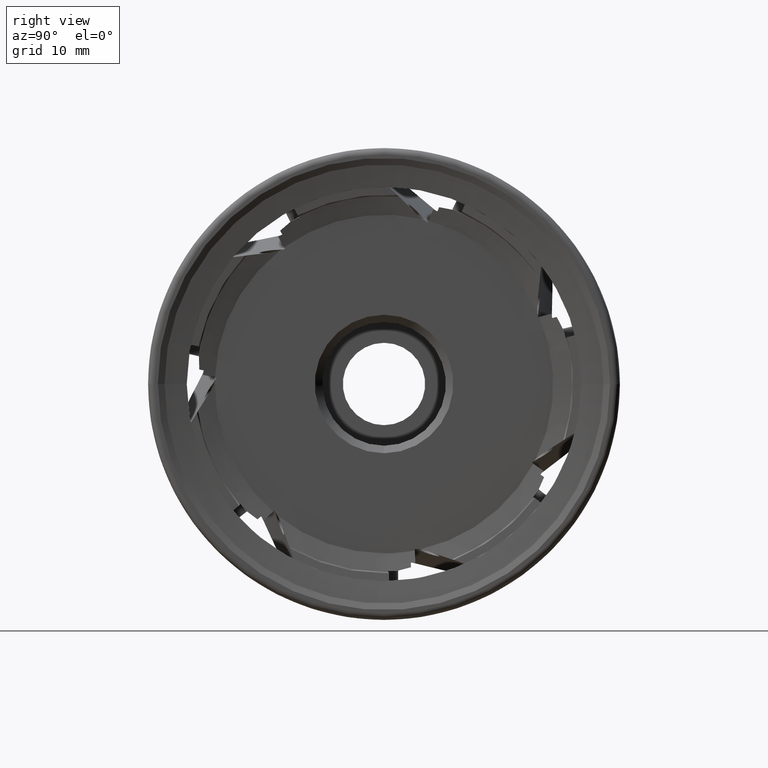
[diagram: clean part render]
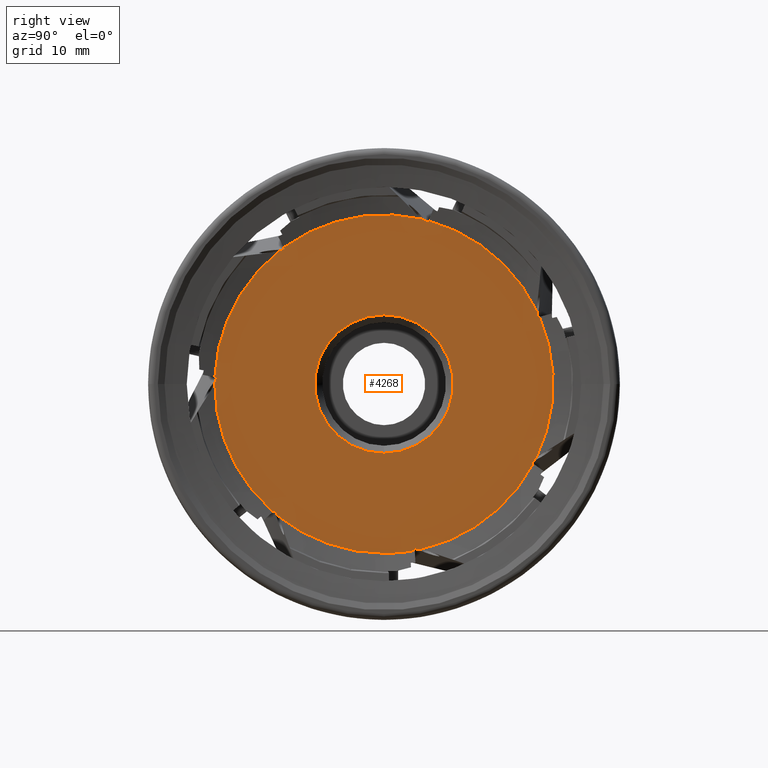
[diagram: same view with one face highlighted and labeled with its STEP entity id]
A machine part, right view. The second image highlights one B-rep face of the part: STEP entity #4268.
In plain terms, the highlighted planar face has unit normal (-1, 0, 0).
Its self-contained STEP definition (entity closure, byte-faithful):
#32 = CARTESIAN_POINT ( 'NONE',  ( -1.399999999999998800, 22.60000000000000100, 0.0000000000000000000 ) ) ;
#56 = PLANE ( 'NONE',  #8028 ) ;
#58 = DIRECTION ( 'NONE',  ( 0.0000000000000000000, 0.0000000000000000000, 1.000000000000000000 ) ) ;
#71 = DIRECTION ( 'NONE',  ( -1.000000000000000000, 0.0000000000000000000, 0.0000000000000000000 ) ) ;
#144 = CARTESIAN_POINT ( 'NONE',  ( -1.399999999999999700, 20.41604027686695500, 9.692538336955200500 ) ) ;
#155 = CARTESIAN_POINT ( 'NONE',  ( -1.399999999999999700, 20.30712452382361000, -9.918704228573505000 ) ) ;
#158 = CARTESIAN_POINT ( 'NONE',  ( -1.399999999999999700, 5.151261290103727600, 22.00510184300629000 ) ) ;
#172 = CARTESIAN_POINT ( 'NONE',  ( -1.400000000000003200, 4.906529814492049700, -22.06096020529252000 ) ) ;
#196 = VERTEX_POINT ( 'NONE', #144 ) ;
#513 = CARTESIAN_POINT ( 'NONE',  ( -1.399999999999998400, 0.0000000000000000000, 0.0000000000000000000 ) ) ;
#514 = DIRECTION ( 'NONE',  ( 1.000000000000000000, -0.0000000000000000000, -0.0000000000000000000 ) ) ;
#515 = DIRECTION ( 'NONE',  ( 0.0000000000000000000, 0.0000000000000000000, -1.000000000000000000 ) ) ;
#591 = CARTESIAN_POINT ( 'NONE',  ( -1.399999999999999700, -14.18878192012048300, -17.59086318584912700 ) ) ;
#646 = CARTESIAN_POINT ( 'NONE',  ( -1.399999999999999700, -13.99252251468825400, 17.74737483899922100 ) ) ;
#779 = CARTESIAN_POINT ( 'NONE',  ( -1.400000000000000600, 4.110753458719973900, -22.22299948255459500 ) ) ;
#815 = CARTESIAN_POINT ( 'NONE',  ( -1.399999999999998400, 0.0000000000000000000, -9.250000000000005300 ) ) ;
#883 = CARTESIAN_POINT ( 'NONE',  ( -1.399999999999998400, 1.132798289211302300E-015, 9.250000000000005300 ) ) ;
#891 = CARTESIAN_POINT ( 'NONE',  ( -1.399999999999999700, 0.0000000000000000000, -22.60000000000000100 ) ) ;
#933 = CARTESIAN_POINT ( 'NONE',  ( -1.399999999999998600, -22.36314276689863000, 0.8877722600349300400 ) ) ;
#936 = CARTESIAN_POINT ( 'NONE',  ( -1.399999999999999700, -22.58055118684321600, 0.9373943131647547400 ) ) ;
#940 = CARTESIAN_POINT ( 'NONE',  ( -1.399999999999998600, -13.24910315051505600, 18.03772601259343800 ) ) ;
#950 = CARTESIAN_POINT ( 'NONE',  ( -1.399999999999999700, -14.81162777086452700, -17.06973001477629700 ) ) ;
#951 = CARTESIAN_POINT ( 'NONE',  ( -1.399999999999998800, -14.63727975482926500, -16.93069211158372400 ) ) ;
#960 = CARTESIAN_POINT ( 'NONE',  ( -1.399999999999999700, -22.59965147047741900, 0.1255126007541865800 ) ) ;
#984 = CARTESIAN_POINT ( 'NONE',  ( -1.399999999999999700, 20.75109378904626600, 8.952770887172615500 ) ) ;
#987 = CARTESIAN_POINT ( 'NONE',  ( -1.399999999999998600, 20.53368536910167900, 8.903148834042792000 ) ) ;
#1013 = CARTESIAN_POINT ( 'NONE',  ( -1.399999999999999700, 5.938537219969624900, 21.80581976645307300 ) ) ;
#1018 = CARTESIAN_POINT ( 'NONE',  ( -1.399999999999999700, 19.93765348979920300, -10.64189707339333100 ) ) ;
#1032 = CARTESIAN_POINT ( 'NONE',  ( -1.399999999999998600, 5.841781370657558100, 21.60490417511303100 ) ) ;
#1038 = CARTESIAN_POINT ( 'NONE',  ( -1.399999999999999700, -13.34585899982712900, 18.23864160393348400 ) ) ;
#1040 = CARTESIAN_POINT ( 'NONE',  ( -1.399999999999998600, 19.76330547376394600, -10.50285917020076100 ) ) ;
#1111 = CARTESIAN_POINT ( 'NONE',  ( -1.399999999999999700, 0.0000000000000000000, 0.0000000000000000000 ) ) ;
#1112 = DIRECTION ( 'NONE',  ( 1.000000000000000000, -0.0000000000000000000, -0.0000000000000000000 ) ) ;
#1113 = DIRECTION ( 'NONE',  ( 0.0000000000000000000, 0.0000000000000000000, -1.000000000000000000 ) ) ;
#1136 = CARTESIAN_POINT ( 'NONE',  ( -1.399999999999999700, 0.0000000000000000000, 0.0000000000000000000 ) ) ;
#1137 = DIRECTION ( 'NONE',  ( 1.000000000000000000, -0.0000000000000000000, -0.0000000000000000000 ) ) ;
#1138 = DIRECTION ( 'NONE',  ( 0.0000000000000000000, 0.0000000000000000000, -1.000000000000000000 ) ) ;
#1160 = CARTESIAN_POINT ( 'NONE',  ( -1.399999999999999700, 0.0000000000000000000, 0.0000000000000000000 ) ) ;
#1161 = DIRECTION ( 'NONE',  ( 1.000000000000000000, -0.0000000000000000000, -0.0000000000000000000 ) ) ;
#1162 = DIRECTION ( 'NONE',  ( 0.0000000000000000000, 0.0000000000000000000, -1.000000000000000000 ) ) ;
#1184 = CARTESIAN_POINT ( 'NONE',  ( -1.399999999999999700, 0.0000000000000000000, 0.0000000000000000000 ) ) ;
#1185 = DIRECTION ( 'NONE',  ( 1.000000000000000000, -0.0000000000000000000, -0.0000000000000000000 ) ) ;
#1186 = DIRECTION ( 'NONE',  ( 0.0000000000000000000, 0.0000000000000000000, -1.000000000000000000 ) ) ;
#1208 = CARTESIAN_POINT ( 'NONE',  ( -1.399999999999999700, 0.0000000000000000000, 0.0000000000000000000 ) ) ;
#1209 = DIRECTION ( 'NONE',  ( 1.000000000000000000, -0.0000000000000000000, -0.0000000000000000000 ) ) ;
#1210 = DIRECTION ( 'NONE',  ( 0.0000000000000000000, 0.0000000000000000000, -1.000000000000000000 ) ) ;
#1232 = CARTESIAN_POINT ( 'NONE',  ( -1.399999999999999700, 0.0000000000000000000, 0.0000000000000000000 ) ) ;
#1233 = DIRECTION ( 'NONE',  ( 1.000000000000000000, -0.0000000000000000000, -0.0000000000000000000 ) ) ;
#1234 = DIRECTION ( 'NONE',  ( 0.0000000000000000000, 0.0000000000000000000, -1.000000000000000000 ) ) ;
#1396 = CARTESIAN_POINT ( 'NONE',  ( -1.399999999999999700, 0.0000000000000000000, 0.0000000000000000000 ) ) ;
#1397 = DIRECTION ( 'NONE',  ( 1.000000000000000000, -0.0000000000000000000, -0.0000000000000000000 ) ) ;
#1398 = DIRECTION ( 'NONE',  ( 0.0000000000000000000, 0.0000000000000000000, -1.000000000000000000 ) ) ;
#1719 = CARTESIAN_POINT ( 'NONE',  ( -1.399999999999998600, 20.53368536910167900, 8.903148834042792000 ) ) ;
#1723 = CARTESIAN_POINT ( 'NONE',  ( -1.399999999999998600, 19.76330547376394600, -10.50285917020076100 ) ) ;
#1724 = CARTESIAN_POINT ( 'NONE',  ( -1.399999999999998600, 19.92953633502286300, -10.29441226328657400 ) ) ;
#1725 = CARTESIAN_POINT ( 'NONE',  ( -1.399999999999998400, 0.0000000000000000000, 0.0000000000000000000 ) ) ;
#1726 = DIRECTION ( 'NONE',  ( 1.000000000000000000, -0.0000000000000000000, -0.0000000000000000000 ) ) ;
#1727 = DIRECTION ( 'NONE',  ( 0.0000000000000000000, 0.0000000000000000000, -1.000000000000000000 ) ) ;
#1728 = CARTESIAN_POINT ( 'NONE',  ( -1.399999999999998600, 20.47435826160222300, 9.163077875422757800 ) ) ;
#1729 = CARTESIAN_POINT ( 'NONE',  ( -1.399999999999998600, 20.11117901510847600, -10.09929686751148600 ) ) ;
#1730 = CARTESIAN_POINT ( 'NONE',  ( -1.399999999999999700, 20.30712452382361000, -9.918704228573505000 ) ) ;
#1731 = CARTESIAN_POINT ( 'NONE',  ( -1.399999999999998400, 5.601570816399265200, 21.72058348121350900 ) ) ;
#1732 = CARTESIAN_POINT ( 'NONE',  ( -1.399999999999998600, 5.841781370657558100, 21.60490417511303100 ) ) ;
#1733 = CARTESIAN_POINT ( 'NONE',  ( -1.399999999999998600, 20.43506326108671800, 9.426744300724928700 ) ) ;
#1734 = CARTESIAN_POINT ( 'NONE',  ( -1.399999999999999700, 20.41604027686695500, 9.692538336955200500 ) ) ;
#1735 = CARTESIAN_POINT ( 'NONE',  ( -1.399999999999998600, -13.48931370477334100, 17.92204670649296700 ) ) ;
#1736 = CARTESIAN_POINT ( 'NONE',  ( -1.399999999999998600, -13.24910315051505600, 18.03772601259343800 ) ) ;
#1737 = CARTESIAN_POINT ( 'NONE',  ( -1.399999999999998400, 5.370928072142761200, 21.85425473997535300 ) ) ;
#1738 = CARTESIAN_POINT ( 'NONE',  ( -1.399999999999999700, 5.151261290103727600, 22.00510184300629000 ) ) ;
#1739 = CARTESIAN_POINT ( 'NONE',  ( -1.399999999999998600, -22.42246987439810400, 0.6278432186549488500 ) ) ;
#1740 = CARTESIAN_POINT ( 'NONE',  ( -1.399999999999998600, -22.36314276689863000, 0.8877722600349300400 ) ) ;
#1741 = CARTESIAN_POINT ( 'NONE',  ( -1.399999999999998600, -13.73762550209110800, 17.82506561447004100 ) ) ;
#1742 = CARTESIAN_POINT ( 'NONE',  ( -1.399999999999999700, -13.99252251468825400, 17.74737483899922100 ) ) ;
#1743 = CARTESIAN_POINT ( 'NONE',  ( -1.399999999999998800, -14.47104889357036900, -17.13913901849789300 ) ) ;
#1744 = CARTESIAN_POINT ( 'NONE',  ( -1.399999999999998800, -14.63727975482926500, -16.93069211158372400 ) ) ;
#1745 = CARTESIAN_POINT ( 'NONE',  ( -1.399999999999998600, -22.50146687675929200, 0.3732385161942614000 ) ) ;
#1746 = CARTESIAN_POINT ( 'NONE',  ( -1.399999999999999700, -22.59965147047741900, 0.1255126007541865800 ) ) ;
#1747 = CARTESIAN_POINT ( 'NONE',  ( -1.399999999999998600, 4.377367059717665900, -21.99999999999999600 ) ) ;
#1748 = CARTESIAN_POINT ( 'NONE',  ( -1.399999999999998600, 4.110753458719973000, -22.00000000000000000 ) ) ;
#1749 = CARTESIAN_POINT ( 'NONE',  ( -1.399999999999998800, -14.32124474695182500, -17.35964479745397100 ) ) ;
#1750 = CARTESIAN_POINT ( 'NONE',  ( -1.399999999999999700, -14.18878192012048300, -17.59086318584912700 ) ) ;
#1753 = CARTESIAN_POINT ( 'NONE',  ( -1.399999999999998600, 4.643166777464476700, -22.02036150639939300 ) ) ;
#1754 = CARTESIAN_POINT ( 'NONE',  ( -1.400000000000003200, 4.906529814492049700, -22.06096020529252000 ) ) ;
#1960 = CIRCLE ( 'NONE', #10606, 22.60000000000000100 ) ;
#2103 = LINE ( 'NONE', #3218, #2106 ) ;
#2106 = VECTOR ( 'NONE', #3219, 1000.000000000000000 ) ;
#2116 = LINE ( 'NONE', #3328, #2119 ) ;
#2119 = VECTOR ( 'NONE', #3329, 1000.000000000000000 ) ;
#2129 = LINE ( 'NONE', #3365, #2132 ) ;
#2132 = VECTOR ( 'NONE', #3366, 1000.000000000000100 ) ;
#2276 = LINE ( 'NONE', #3666, #2279 ) ;
#2279 = VECTOR ( 'NONE', #3667, 1000.000000000000100 ) ;
#2289 = LINE ( 'NONE', #3693, #2292 ) ;
#2292 = VECTOR ( 'NONE', #3694, 1000.000000000000100 ) ;
#2302 = LINE ( 'NONE', #3724, #3887 ) ;
#2546 = CARTESIAN_POINT ( 'NONE',  ( -1.399999999999999700, 0.0000000000000000000, 0.0000000000000000000 ) ) ;
#2547 = DIRECTION ( 'NONE',  ( 1.000000000000000000, -0.0000000000000000000, -0.0000000000000000000 ) ) ;
#2548 = DIRECTION ( 'NONE',  ( 0.0000000000000000000, 0.0000000000000000000, -1.000000000000000000 ) ) ;
#3218 = CARTESIAN_POINT ( 'NONE',  ( -1.399999999999998800, 16.37749941317354200, -7.802768936963082600 ) ) ;
#3219 = DIRECTION ( 'NONE',  ( 0.0000000000000000000, -0.7818314824680221400, 0.6234898018587431400 ) ) ;
#3234 =( BOUNDED_CURVE ( )  B_SPLINE_CURVE ( 3, ( #1732, #1731, #1737, #1738 ),
 .UNSPECIFIED., .F., .F. ) 
 B_SPLINE_CURVE_WITH_KNOTS ( ( 4, 4 ),
 ( 4.712388980384688800, 4.868702103524778800 ),
 .UNSPECIFIED. ) 
 CURVE ( )  GEOMETRIC_REPRESENTATION_ITEM ( )  RATIONAL_B_SPLINE_CURVE ( ( 1.000000000000000000, 0.9979648868928966400, 0.9979648868928966400, 1.000000000000000000 ) ) 
 REPRESENTATION_ITEM ( '' )  );
#3243 =( BOUNDED_CURVE ( )  B_SPLINE_CURVE ( 3, ( #1748, #1747, #1753, #1754 ),
 .UNSPECIFIED., .F., .F. ) 
 B_SPLINE_CURVE_WITH_KNOTS ( ( 4, 4 ),
 ( 4.712388980384687900, 4.868702103524768200 ),
 .UNSPECIFIED. ) 
 CURVE ( )  GEOMETRIC_REPRESENTATION_ITEM ( )  RATIONAL_B_SPLINE_CURVE ( ( 1.000000000000000000, 0.9979648868928969700, 0.9979648868928969700, 1.000000000000000000 ) ) 
 REPRESENTATION_ITEM ( '' )  );
#3244 =( BOUNDED_CURVE ( )  B_SPLINE_CURVE ( 3, ( #1740, #1739, #1745, #1746 ),
 .UNSPECIFIED., .F., .F. ) 
 B_SPLINE_CURVE_WITH_KNOTS ( ( 4, 4 ),
 ( 4.712388980384687900, 4.868702103524782400 ),
 .UNSPECIFIED. ) 
 CURVE ( )  GEOMETRIC_REPRESENTATION_ITEM ( )  RATIONAL_B_SPLINE_CURVE ( ( 1.000000000000000000, 0.9979648868928965300, 0.9979648868928965300, 1.000000000000000000 ) ) 
 REPRESENTATION_ITEM ( '' )  );
#3255 =( BOUNDED_CURVE ( )  B_SPLINE_CURVE ( 3, ( #1723, #1724, #1729, #1730 ),
 .UNSPECIFIED., .F., .F. ) 
 B_SPLINE_CURVE_WITH_KNOTS ( ( 4, 4 ),
 ( 4.712388980384687900, 4.868702103524785900 ),
 .UNSPECIFIED. ) 
 CURVE ( )  GEOMETRIC_REPRESENTATION_ITEM ( )  RATIONAL_B_SPLINE_CURVE ( ( 1.000000000000000000, 0.9979648868928965300, 0.9979648868928965300, 1.000000000000000000 ) ) 
 REPRESENTATION_ITEM ( '' )  );
#3261 =( BOUNDED_CURVE ( )  B_SPLINE_CURVE ( 3, ( #1744, #1743, #1749, #1750 ),
 .UNSPECIFIED., .F., .F. ) 
 B_SPLINE_CURVE_WITH_KNOTS ( ( 4, 4 ),
 ( 4.712388980384686100, 4.868702103524767300 ),
 .UNSPECIFIED. ) 
 CURVE ( )  GEOMETRIC_REPRESENTATION_ITEM ( )  RATIONAL_B_SPLINE_CURVE ( ( 1.000000000000000000, 0.9979648868928967500, 0.9979648868928967500, 1.000000000000000000 ) ) 
 REPRESENTATION_ITEM ( '' )  );
#3262 =( BOUNDED_CURVE ( )  B_SPLINE_CURVE ( 3, ( #1736, #1735, #1741, #1742 ),
 .UNSPECIFIED., .F., .F. ) 
 B_SPLINE_CURVE_WITH_KNOTS ( ( 4, 4 ),
 ( 4.712388980384688800, 4.868702103524771700 ),
 .UNSPECIFIED. ) 
 CURVE ( )  GEOMETRIC_REPRESENTATION_ITEM ( )  RATIONAL_B_SPLINE_CURVE ( ( 1.000000000000000000, 0.9979648868928967500, 0.9979648868928967500, 1.000000000000000000 ) ) 
 REPRESENTATION_ITEM ( '' )  );
#3266 =( BOUNDED_CURVE ( )  B_SPLINE_CURVE ( 3, ( #1719, #1728, #1733, #1734 ),
 .UNSPECIFIED., .F., .F. ) 
 B_SPLINE_CURVE_WITH_KNOTS ( ( 4, 4 ),
 ( 4.712388980384687900, 4.868702103524770800 ),
 .UNSPECIFIED. ) 
 CURVE ( )  GEOMETRIC_REPRESENTATION_ITEM ( )  RATIONAL_B_SPLINE_CURVE ( ( 1.000000000000000000, 0.9979648868928967500, 0.9979648868928967500, 1.000000000000000000 ) ) 
 REPRESENTATION_ITEM ( '' )  );
#3328 = CARTESIAN_POINT ( 'NONE',  ( -1.399999999999998800, 20.56621950839895200, 8.910574539032294800 ) ) ;
#3329 = DIRECTION ( 'NONE',  ( 0.0000000000000000000, -0.9749279121818257300, -0.2225209339563050700 ) ) ;
#3365 = CARTESIAN_POINT ( 'NONE',  ( -1.399999999999998800, 0.5509043490675713500, 10.61828483314873500 ) ) ;
#3366 = DIRECTION ( 'NONE',  ( 0.0000000000000000000, -0.4338837391175651100, -0.9009688679024157000 ) ) ;
#3666 = CARTESIAN_POINT ( 'NONE',  ( -1.399999999999998800, 0.5509043490673042300, -10.61828483314848800 ) ) ;
#3667 = DIRECTION ( 'NONE',  ( 0.0000000000000000000, 0.4338837391175526800, -0.9009688679024217000 ) ) ;
#3693 = CARTESIAN_POINT ( 'NONE',  ( -1.399999999999998800, 20.56621950839876700, -8.910574539032554100 ) ) ;
#3694 = DIRECTION ( 'NONE',  ( 0.0000000000000000000, 0.9749279121818227300, -0.2225209339563181400 ) ) ;
#3724 = CARTESIAN_POINT ( 'NONE',  ( -1.399999999999998800, 16.37749941317380800, 7.802768936962975100 ) ) ;
#3725 = DIRECTION ( 'NONE',  ( 0.0000000000000000000, 0.7818314824680309100, 0.6234898018587321500 ) ) ;
#3887 = VECTOR ( 'NONE', #3725, 1000.000000000000000 ) ;
#4122 = VERTEX_POINT ( 'NONE', #155 ) ;
#4132 = VERTEX_POINT ( 'NONE', #158 ) ;
#4141 = VERTEX_POINT ( 'NONE', #172 ) ;
#4208 = VERTEX_POINT ( 'NONE', #9428 ) ;
#4268 = ADVANCED_FACE ( 'NONE', ( #8494, #8491 ), #56, .F. ) ;
#4585 = EDGE_CURVE ( 'NONE', #6787, #4208, #10035, .T. ) ;
#4892 = EDGE_CURVE ( 'NONE', #6891, #6823, #10213, .T. ) ;
#5010 = VERTEX_POINT ( 'NONE', #591 ) ;
#5063 = VERTEX_POINT ( 'NONE', #646 ) ;
#5176 = ORIENTED_EDGE ( 'NONE', *, *, #7514, .F. ) ;
#5177 = ORIENTED_EDGE ( 'NONE', *, *, #4892, .F. ) ;
#5178 = ORIENTED_EDGE ( 'NONE', *, *, #7348, .T. ) ;
#5179 = ORIENTED_EDGE ( 'NONE', *, *, #7811, .T. ) ;
#5180 = ORIENTED_EDGE ( 'NONE', *, *, #7515, .T. ) ;
#5181 = ORIENTED_EDGE ( 'NONE', *, *, #7355, .T. ) ;
#5182 = ORIENTED_EDGE ( 'NONE', *, *, #7823, .T. ) ;
#5183 = ORIENTED_EDGE ( 'NONE', *, *, #7516, .T. ) ;
#5184 = ORIENTED_EDGE ( 'NONE', *, *, #7362, .T. ) ;
#5185 = ORIENTED_EDGE ( 'NONE', *, *, #7835, .T. ) ;
#5186 = ORIENTED_EDGE ( 'NONE', *, *, #7517, .T. ) ;
#5187 = ORIENTED_EDGE ( 'NONE', *, *, #7369, .T. ) ;
#5188 = ORIENTED_EDGE ( 'NONE', *, *, #7925, .T. ) ;
#5189 = ORIENTED_EDGE ( 'NONE', *, *, #7518, .T. ) ;
#5190 = ORIENTED_EDGE ( 'NONE', *, *, #7376, .T. ) ;
#5191 = ORIENTED_EDGE ( 'NONE', *, *, #7935, .T. ) ;
#5192 = ORIENTED_EDGE ( 'NONE', *, *, #7519, .T. ) ;
#5193 = ORIENTED_EDGE ( 'NONE', *, *, #7383, .T. ) ;
#5194 = ORIENTED_EDGE ( 'NONE', *, *, #7946, .T. ) ;
#5195 = ORIENTED_EDGE ( 'NONE', *, *, #7520, .T. ) ;
#5196 = ORIENTED_EDGE ( 'NONE', *, *, #7433, .T. ) ;
#5197 = ORIENTED_EDGE ( 'NONE', *, *, #7619, .T. ) ;
#5198 = ORIENTED_EDGE ( 'NONE', *, *, #4585, .T. ) ;
#5199 = ORIENTED_EDGE ( 'NONE', *, *, #7521, .T. ) ;
#6787 = VERTEX_POINT ( 'NONE', #779 ) ;
#6823 = VERTEX_POINT ( 'NONE', #815 ) ;
#6891 = VERTEX_POINT ( 'NONE', #883 ) ;
#6899 = VERTEX_POINT ( 'NONE', #891 ) ;
#7035 = VERTEX_POINT ( 'NONE', #936 ) ;
#7041 = VERTEX_POINT ( 'NONE', #933 ) ;
#7042 = VERTEX_POINT ( 'NONE', #940 ) ;
#7052 = VERTEX_POINT ( 'NONE', #950 ) ;
#7053 = VERTEX_POINT ( 'NONE', #951 ) ;
#7062 = VERTEX_POINT ( 'NONE', #960 ) ;
#7090 = VERTEX_POINT ( 'NONE', #984 ) ;
#7093 = VERTEX_POINT ( 'NONE', #987 ) ;
#7119 = VERTEX_POINT ( 'NONE', #1013 ) ;
#7124 = VERTEX_POINT ( 'NONE', #1018 ) ;
#7138 = VERTEX_POINT ( 'NONE', #1032 ) ;
#7144 = VERTEX_POINT ( 'NONE', #1038 ) ;
#7146 = VERTEX_POINT ( 'NONE', #1040 ) ;
#7256 = EDGE_LOOP ( 'NONE', ( #5176, #5177 ) ) ;
#7280 = EDGE_LOOP ( 'NONE', ( #5178, #5179, #5180, #5181, #5182, #5183, #5184, #5185, #5186, #5187, #5188, #5189, #5190, #5191, #5192, #5193, #5194, #5195, #5196, #5197, #5198, #5199 ) ) ;
#7348 = EDGE_CURVE ( 'NONE', #4141, #7124, #10255, .T. ) ;
#7355 = EDGE_CURVE ( 'NONE', #4122, #7090, #10259, .T. ) ;
#7362 = EDGE_CURVE ( 'NONE', #196, #7119, #10264, .T. ) ;
#7369 = EDGE_CURVE ( 'NONE', #4132, #7144, #10268, .T. ) ;
#7376 = EDGE_CURVE ( 'NONE', #5063, #7035, #10272, .T. ) ;
#7383 = EDGE_CURVE ( 'NONE', #7062, #7052, #10276, .T. ) ;
#7433 = EDGE_CURVE ( 'NONE', #5010, #6899, #10325, .T. ) ;
#7514 = EDGE_CURVE ( 'NONE', #6823, #6891, #10380, .T. ) ;
#7515 = EDGE_CURVE ( 'NONE', #7146, #4122, #3255, .T. ) ;
#7516 = EDGE_CURVE ( 'NONE', #7093, #196, #3266, .T. ) ;
#7517 = EDGE_CURVE ( 'NONE', #7138, #4132, #3234, .T. ) ;
#7518 = EDGE_CURVE ( 'NONE', #7042, #5063, #3262, .T. ) ;
#7519 = EDGE_CURVE ( 'NONE', #7041, #7062, #3244, .T. ) ;
#7520 = EDGE_CURVE ( 'NONE', #7053, #5010, #3261, .T. ) ;
#7521 = EDGE_CURVE ( 'NONE', #4208, #4141, #3243, .T. ) ;
#7619 = EDGE_CURVE ( 'NONE', #6899, #6787, #1960, .T. ) ;
#7811 = EDGE_CURVE ( 'NONE', #7124, #7146, #2103, .T. ) ;
#7823 = EDGE_CURVE ( 'NONE', #7090, #7093, #2116, .T. ) ;
#7835 = EDGE_CURVE ( 'NONE', #7119, #7138, #2129, .T. ) ;
#7925 = EDGE_CURVE ( 'NONE', #7144, #7042, #2276, .T. ) ;
#7935 = EDGE_CURVE ( 'NONE', #7035, #7041, #2289, .T. ) ;
#7946 = EDGE_CURVE ( 'NONE', #7052, #7053, #2302, .T. ) ;
#8028 = AXIS2_PLACEMENT_3D ( 'NONE', #32, #71, #58 ) ;
#8491 = FACE_OUTER_BOUND ( 'NONE', #7280, .T. ) ;
#8494 = FACE_BOUND ( 'NONE', #7256, .T. ) ;
#9428 = CARTESIAN_POINT ( 'NONE',  ( -1.399999999999998600, 4.110753458719973000, -22.00000000000000000 ) ) ;
#10035 = LINE ( 'NONE', #10909, #10040 ) ;
#10040 = VECTOR ( 'NONE', #10910, 1000.000000000000000 ) ;
#10213 = CIRCLE ( 'NONE', #10507, 9.250000000000005300 ) ;
#10255 = CIRCLE ( 'NONE', #10519, 22.60000000000000100 ) ;
#10259 = CIRCLE ( 'NONE', #10521, 22.60000000000000100 ) ;
#10264 = CIRCLE ( 'NONE', #10523, 22.60000000000000100 ) ;
#10268 = CIRCLE ( 'NONE', #10525, 22.60000000000000100 ) ;
#10272 = CIRCLE ( 'NONE', #10527, 22.60000000000000100 ) ;
#10276 = CIRCLE ( 'NONE', #10529, 22.60000000000000100 ) ;
#10325 = CIRCLE ( 'NONE', #10542, 22.60000000000000100 ) ;
#10380 = CIRCLE ( 'NONE', #10575, 9.250000000000005300 ) ;
#10507 = AXIS2_PLACEMENT_3D ( 'NONE', #513, #514, #515 ) ;
#10519 = AXIS2_PLACEMENT_3D ( 'NONE', #1111, #1112, #1113 ) ;
#10521 = AXIS2_PLACEMENT_3D ( 'NONE', #1136, #1137, #1138 ) ;
#10523 = AXIS2_PLACEMENT_3D ( 'NONE', #1160, #1161, #1162 ) ;
#10525 = AXIS2_PLACEMENT_3D ( 'NONE', #1184, #1185, #1186 ) ;
#10527 = AXIS2_PLACEMENT_3D ( 'NONE', #1208, #1209, #1210 ) ;
#10529 = AXIS2_PLACEMENT_3D ( 'NONE', #1232, #1233, #1234 ) ;
#10542 = AXIS2_PLACEMENT_3D ( 'NONE', #1396, #1397, #1398 ) ;
#10575 = AXIS2_PLACEMENT_3D ( 'NONE', #1725, #1726, #1727 ) ;
#10606 = AXIS2_PLACEMENT_3D ( 'NONE', #2546, #2547, #2548 ) ;
#10909 = CARTESIAN_POINT ( 'NONE',  ( -1.399999999999998800, 4.110753458719973000, -1.362334200508010100E-015 ) ) ;
#10910 = DIRECTION ( 'NONE',  ( 0.0000000000000000000, -7.368251580541120600E-017, 1.000000000000000000 ) ) ;